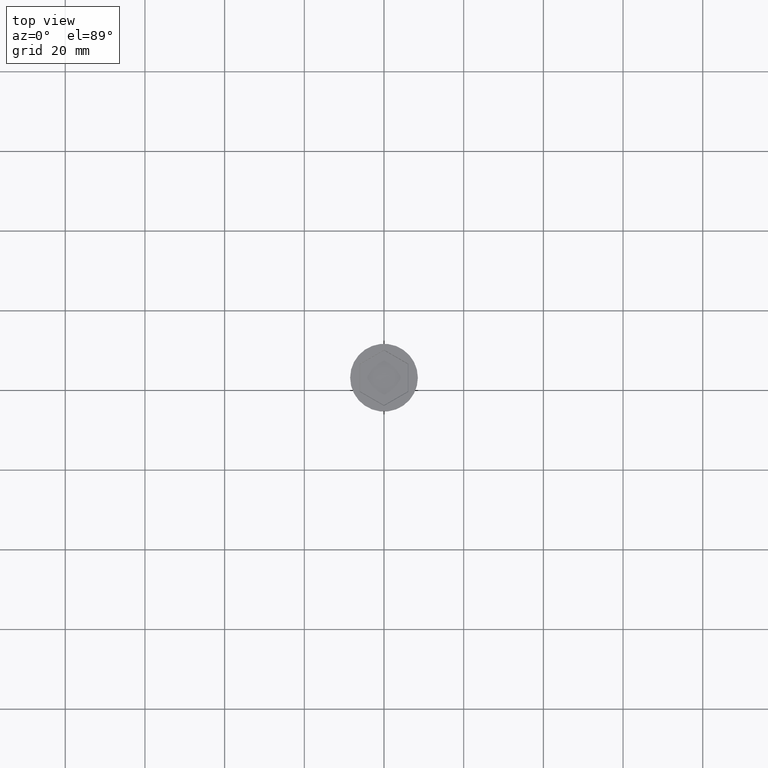
[diagram: clean part render]
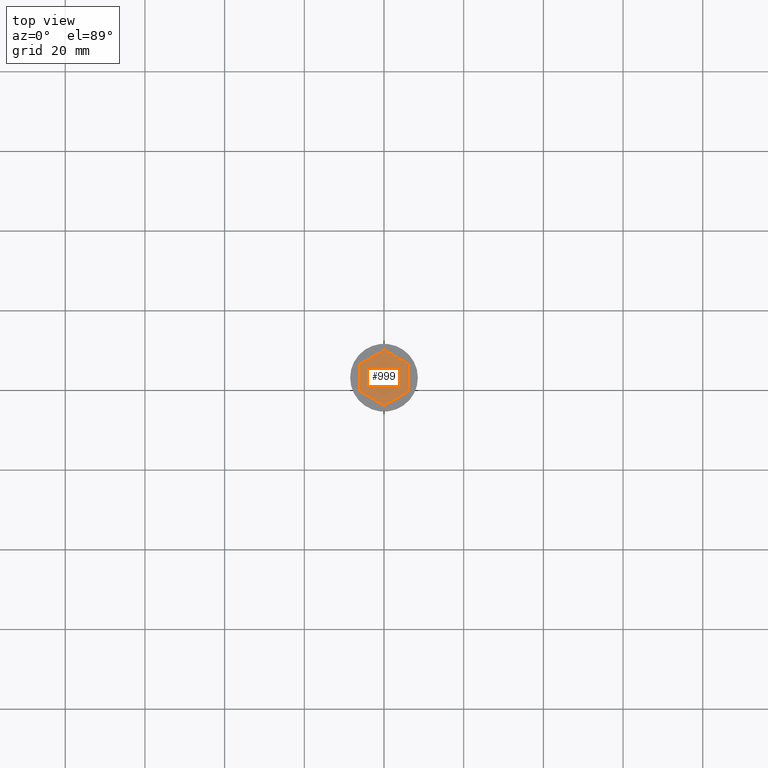
[diagram: same view with one face highlighted and labeled with its STEP entity id]
A machine part, top view. The second image highlights one B-rep face of the part: STEP entity #999.
In plain terms, the highlighted planar face has unit normal (-0, 0, 1).
Its self-contained STEP definition (entity closure, byte-faithful):
#32 = VECTOR ( 'NONE', #1136, 1000.000000000000000 ) ;
#54 = CARTESIAN_POINT ( 'NONE',  ( 6.000000000000000000, 3.464101615137754830, -2.000000000000000000 ) ) ;
#91 = DIRECTION ( 'NONE',  ( 0.000000000000000000, 1.000000000000000000, -0.000000000000000000 ) ) ;
#113 = CARTESIAN_POINT ( 'NONE',  ( 6.000000000000000000, 0.000000000000000000, -2.000000000000000000 ) ) ;
#145 = ORIENTED_EDGE ( 'NONE', *, *, #902, .T. ) ;
#148 = VERTEX_POINT ( 'NONE', #718 ) ;
#219 = DIRECTION ( 'NONE',  ( -0.000000000000000000, 0.000000000000000000, 1.000000000000000000 ) ) ;
#234 = LINE ( 'NONE', #1209, #1063 ) ;
#238 = VECTOR ( 'NONE', #879, 1000.000000000000000 ) ;
#328 = PLANE ( 'NONE',  #394 ) ;
#394 = AXIS2_PLACEMENT_3D ( 'NONE', #1349, #219, #604 ) ;
#401 = ORIENTED_EDGE ( 'NONE', *, *, #946, .T. ) ;
#414 = DIRECTION ( 'NONE',  ( 0.8660254037844385966, 0.5000000000000001110, 0.000000000000000000 ) ) ;
#461 = VERTEX_POINT ( 'NONE', #54 ) ;
#491 = CARTESIAN_POINT ( 'NONE',  ( -6.000000000000000000, -3.464101615137754830, -2.000000000000000000 ) ) ;
#518 = LINE ( 'NONE', #640, #32 ) ;
#532 = LINE ( 'NONE', #1526, #1224 ) ;
#604 = DIRECTION ( 'NONE',  ( 1.000000000000000000, 0.000000000000000000, 0.000000000000000000 ) ) ;
#616 = CARTESIAN_POINT ( 'NONE',  ( 2.999999999999998668, 5.196152422706632024, -2.000000000000000000 ) ) ;
#640 = CARTESIAN_POINT ( 'NONE',  ( -6.000000000000000000, -7.511572993685799101E-16, -2.000000000000000000 ) ) ;
#704 = VECTOR ( 'NONE', #91, 1000.000000000000000 ) ;
#718 = CARTESIAN_POINT ( 'NONE',  ( -6.000000000000000000, 3.464101615137752166, -2.000000000000000000 ) ) ;
#726 = VERTEX_POINT ( 'NONE', #1270 ) ;
#732 = EDGE_CURVE ( 'NONE', #148, #1051, #518, .T. ) ;
#734 = CARTESIAN_POINT ( 'NONE',  ( 0.000000000000000000, 6.928203230275507885, -2.000000000000000000 ) ) ;
#835 = VECTOR ( 'NONE', #984, 1000.000000000000114 ) ;
#838 = LINE ( 'NONE', #113, #704 ) ;
#853 = LINE ( 'NONE', #863, #238 ) ;
#863 = CARTESIAN_POINT ( 'NONE',  ( -3.000000000000000000, 5.196152422706630247, -2.000000000000000000 ) ) ;
#879 = DIRECTION ( 'NONE',  ( -0.8660254037844385966, -0.5000000000000001110, 0.000000000000000000 ) ) ;
#902 = EDGE_CURVE ( 'NONE', #1051, #726, #234, .T. ) ;
#930 = ORIENTED_EDGE ( 'NONE', *, *, #1527, .T. ) ;
#946 = EDGE_CURVE ( 'NONE', #1576, #461, #838, .T. ) ;
#951 = DIRECTION ( 'NONE',  ( 0.8660254037844385966, -0.5000000000000001110, 0.000000000000000000 ) ) ;
#952 = ORIENTED_EDGE ( 'NONE', *, *, #1286, .T. ) ;
#984 = DIRECTION ( 'NONE',  ( -0.8660254037844387076, 0.4999999999999998890, 0.000000000000000000 ) ) ;
#999 = ADVANCED_FACE ( 'NONE', ( #1334 ), #328, .T. ) ;
#1011 = ORIENTED_EDGE ( 'NONE', *, *, #1242, .T. ) ;
#1051 = VERTEX_POINT ( 'NONE', #491 ) ;
#1063 = VECTOR ( 'NONE', #951, 1000.000000000000000 ) ;
#1136 = DIRECTION ( 'NONE',  ( 1.251928832280966188E-16, -1.000000000000000000, 0.000000000000000000 ) ) ;
#1162 = CARTESIAN_POINT ( 'NONE',  ( 6.000000000000000000, -3.464101615137756607, -2.000000000000000000 ) ) ;
#1209 = CARTESIAN_POINT ( 'NONE',  ( -3.000000000000000888, -5.196152422706632024, -2.000000000000000000 ) ) ;
#1224 = VECTOR ( 'NONE', #414, 1000.000000000000000 ) ;
#1242 = EDGE_CURVE ( 'NONE', #461, #1291, #1604, .T. ) ;
#1270 = CARTESIAN_POINT ( 'NONE',  ( 1.734723475976807094E-15, -6.928203230275511437, -2.000000000000000000 ) ) ;
#1286 = EDGE_CURVE ( 'NONE', #1291, #148, #853, .T. ) ;
#1291 = VERTEX_POINT ( 'NONE', #734 ) ;
#1334 = FACE_OUTER_BOUND ( 'NONE', #1335, .T. ) ;
#1335 = EDGE_LOOP ( 'NONE', ( #1011, #952, #1571, #145, #930, #401 ) ) ;
#1349 = CARTESIAN_POINT ( 'NONE',  ( 0.000000000000000000, 0.000000000000000000, -2.000000000000000000 ) ) ;
#1526 = CARTESIAN_POINT ( 'NONE',  ( 3.000000000000001776, -5.196152422706633800, -2.000000000000000000 ) ) ;
#1527 = EDGE_CURVE ( 'NONE', #726, #1576, #532, .T. ) ;
#1571 = ORIENTED_EDGE ( 'NONE', *, *, #732, .T. ) ;
#1576 = VERTEX_POINT ( 'NONE', #1162 ) ;
#1604 = LINE ( 'NONE', #616, #835 ) ;